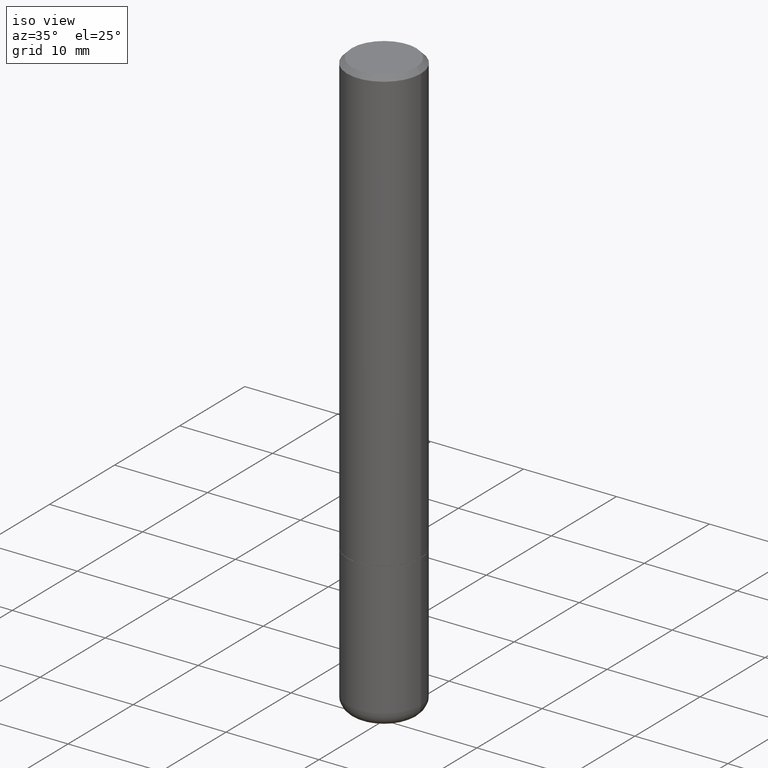
[diagram: clean part render]
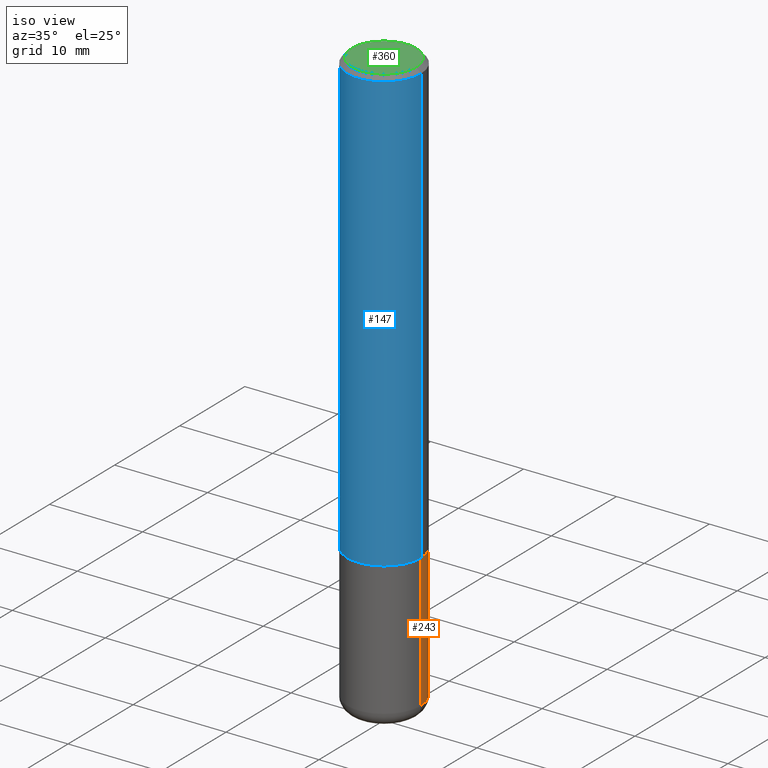
[diagram: same view with three faces highlighted in distinct colors, each labeled with its STEP entity id]
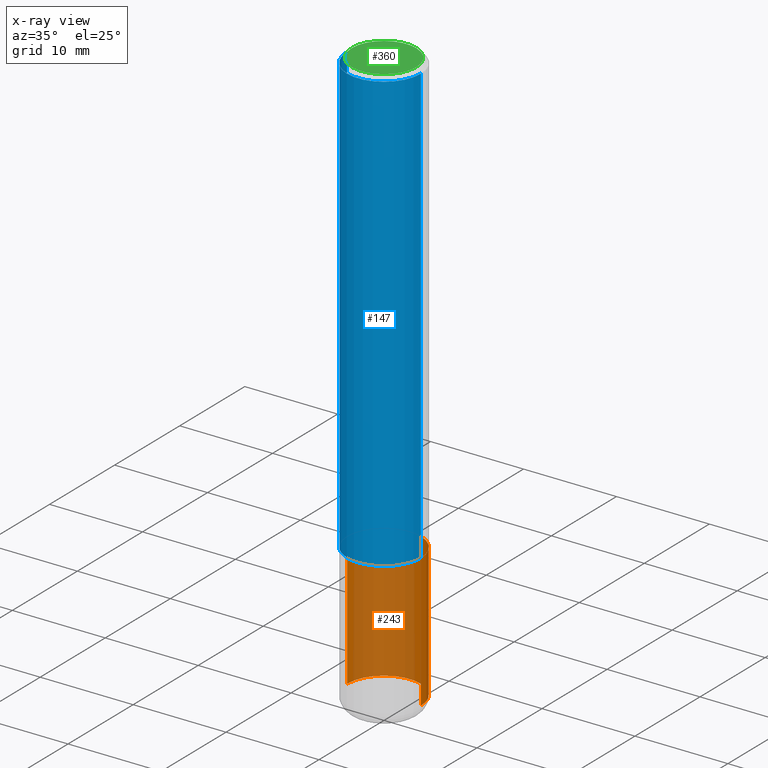
[diagram: x-ray of the same camera — body ghosted, the three highlighted faces saturated]
A machine part, iso view with three faces highlighted in distinct colors.
The next image is the same camera in x-ray (body ghosted, the three faces saturated) — at least one of them is partly hidden behind the body in this view.
Their STEP definitions:

[orange] entity #243 — the highlighted cylindrical surface (partial cylindrical patch) has radius 3.9688 mm, axis along (-0, 0, 1).
#15 = AXIS2_PLACEMENT_3D ( 'NONE', #309, #30, #129 ) ;
#28 = DIRECTION ( 'NONE',  ( -2.445468806185136877E-29, 3.491481338843145188E-15, 1.000000000000000000 ) ) ;
#30 = DIRECTION ( 'NONE',  ( -2.445468806185136597E-29, 3.491481338843145583E-15, 1.000000000000000000 ) ) ;
#60 = DIRECTION ( 'NONE',  ( 1.000000000000000000, -6.982962677686269077E-15, 0.000000000000000000 ) ) ;
#63 = DIRECTION ( 'NONE',  ( -2.445468806185136597E-29, 3.491481338843145583E-15, 1.000000000000000000 ) ) ;
#66 = VERTEX_POINT ( 'NONE', #270 ) ;
#76 = EDGE_CURVE ( 'NONE', #375, #368, #140, .T. ) ;
#79 = DIRECTION ( 'NONE',  ( 1.000000000000000000, -6.982962677686262766E-15, 0.000000000000000000 ) ) ;
#94 = DIRECTION ( 'NONE',  ( -2.445468806185136877E-29, 3.491481338843145188E-15, 1.000000000000000000 ) ) ;
#128 = CARTESIAN_POINT ( 'NONE',  ( -0.1562500000000001110, -7.408991442152118508E-15, -2.440000000000000391 ) ) ;
#129 = DIRECTION ( 'NONE',  ( 1.000000000000000000, -6.982962677686266711E-15, 4.876176775795936353E-29 ) ) ;
#133 = ORIENTED_EDGE ( 'NONE', *, *, #214, .F. ) ;
#140 = CIRCLE ( 'NONE', #331, 0.1562500000000000000 ) ;
#158 = LINE ( 'NONE', #301, #310 ) ;
#163 = CIRCLE ( 'NONE', #395, 0.1562500000000000000 ) ;
#171 = DIRECTION ( 'NONE',  ( -2.445468806185136597E-29, 3.491481338843145583E-15, 1.000000000000000000 ) ) ;
#175 = CARTESIAN_POINT ( 'NONE',  ( 5.966943887091733341E-29, -8.519214466777275048E-15, -2.440000000000000391 ) ) ;
#180 = CARTESIAN_POINT ( 'NONE',  ( 0.1562500000000001110, -9.610302385165753433E-15, -2.440000000000000391 ) ) ;
#187 = CYLINDRICAL_SURFACE ( 'NONE', #15, 0.1562500000000000000 ) ;
#209 = ORIENTED_EDGE ( 'NONE', *, *, #238, .F. ) ;
#214 = EDGE_CURVE ( 'NONE', #375, #348, #158, .T. ) ;
#217 = CARTESIAN_POINT ( 'NONE',  ( 4.585254011597131119E-29, -6.546527510330898707E-15, -1.875000000000000000 ) ) ;
#230 = EDGE_CURVE ( 'NONE', #368, #66, #241, .T. ) ;
#238 = EDGE_CURVE ( 'NONE', #348, #66, #163, .T. ) ;
#241 = LINE ( 'NONE', #369, #339 ) ;
#243 = ADVANCED_FACE ( 'NONE', ( #408 ), #187, .T. ) ;
#270 = CARTESIAN_POINT ( 'NONE',  ( -0.1562500000000000000, -6.422647963928930337E-15, -1.875000000000000000 ) ) ;
#276 = CARTESIAN_POINT ( 'NONE',  ( 0.1562500000000000000, -7.637615428719378669E-15, -1.875000000000000000 ) ) ;
#301 = CARTESIAN_POINT ( 'NONE',  ( 0.1562500000000000000, -1.091087918388479174E-15, 7.619026212181150377E-30 ) ) ;
#309 = CARTESIAN_POINT ( 'NONE',  ( 0.000000000000000000, 0.000000000000000000, 0.000000000000000000 ) ) ;
#310 = VECTOR ( 'NONE', #28, 39.37007874015748143 ) ;
#331 = AXIS2_PLACEMENT_3D ( 'NONE', #175, #171, #79 ) ;
#339 = VECTOR ( 'NONE', #94, 39.37007874015748143 ) ;
#348 = VERTEX_POINT ( 'NONE', #276 ) ;
#352 = EDGE_LOOP ( 'NONE', ( #412, #354, #209, #133 ) ) ;
#354 = ORIENTED_EDGE ( 'NONE', *, *, #230, .T. ) ;
#368 = VERTEX_POINT ( 'NONE', #128 ) ;
#369 = CARTESIAN_POINT ( 'NONE',  ( -0.1562500000000000000, 1.110223024625156540E-15, -7.685836078523291160E-30 ) ) ;
#375 = VERTEX_POINT ( 'NONE', #180 ) ;
#395 = AXIS2_PLACEMENT_3D ( 'NONE', #217, #63, #60 ) ;
#408 = FACE_OUTER_BOUND ( 'NONE', #352, .T. ) ;
#412 = ORIENTED_EDGE ( 'NONE', *, *, #76, .T. ) ;

[blue] entity #147 — the highlighted cylindrical surface (partial cylindrical patch) has radius 3.9688 mm, axis along (-0, 0, 1).
#6 = ORIENTED_EDGE ( 'NONE', *, *, #291, .T. ) ;
#21 = ORIENTED_EDGE ( 'NONE', *, *, #89, .F. ) ;
#22 = EDGE_CURVE ( 'NONE', #80, #240, #131, .T. ) ;
#29 = EDGE_CURVE ( 'NONE', #198, #37, #236, .T. ) ;
#32 = ORIENTED_EDGE ( 'NONE', *, *, #22, .F. ) ;
#37 = VERTEX_POINT ( 'NONE', #358 ) ;
#42 = DIRECTION ( 'NONE',  ( -2.445468806185136597E-29, 3.491481338843145583E-15, 1.000000000000000000 ) ) ;
#54 = CARTESIAN_POINT ( 'NONE',  ( 0.000000000000000000, 0.000000000000000000, 0.000000000000000000 ) ) ;
#57 = CARTESIAN_POINT ( 'NONE',  ( -0.1562500000000002220, -2.196209803259299803E-15, -1.874000000000000110 ) ) ;
#68 = CARTESIAN_POINT ( 'NONE',  ( 0.1562500000000001388, -1.091087918388480160E-15, 7.619026212181157383E-30 ) ) ;
#80 = VERTEX_POINT ( 'NONE', #397 ) ;
#89 = EDGE_CURVE ( 'NONE', #198, #80, #115, .T. ) ;
#115 = LINE ( 'NONE', #145, #225 ) ;
#131 = CIRCLE ( 'NONE', #379, 0.1562500000000000278 ) ;
#145 = CARTESIAN_POINT ( 'NONE',  ( -0.1562500000000001388, 1.110223024625157526E-15, -7.685836078523296765E-30 ) ) ;
#147 = ADVANCED_FACE ( 'NONE', ( #363 ), #335, .T. ) ;
#149 = DIRECTION ( 'NONE',  ( -2.445468806185136597E-29, 3.491481338843145583E-15, 1.000000000000000000 ) ) ;
#160 = DIRECTION ( 'NONE',  ( 1.000000000000000000, -6.982962677686266711E-15, 4.876176775795936353E-29 ) ) ;
#166 = LINE ( 'NONE', #68, #374 ) ;
#185 = CARTESIAN_POINT ( 'NONE',  ( 0.1562500000000000278, -1.141782438928665105E-15, -0.02000000000000003511 ) ) ;
#197 = AXIS2_PLACEMENT_3D ( 'NONE', #266, #149, #211 ) ;
#198 = VERTEX_POINT ( 'NONE', #57 ) ;
#211 = DIRECTION ( 'NONE',  ( 1.000000000000000000, -6.982962677686265922E-15, 0.000000000000000000 ) ) ;
#220 = DIRECTION ( 'NONE',  ( -2.445468806185136597E-29, 3.491481338843145583E-15, 1.000000000000000000 ) ) ;
#225 = VECTOR ( 'NONE', #400, 39.37007874015748143 ) ;
#236 = CIRCLE ( 'NONE', #197, 0.1562500000000002220 ) ;
#240 = VERTEX_POINT ( 'NONE', #185 ) ;
#251 = DIRECTION ( 'NONE',  ( -2.445468806185136877E-29, 3.491481338843145188E-15, 1.000000000000000000 ) ) ;
#265 = AXIS2_PLACEMENT_3D ( 'NONE', #54, #220, #160 ) ;
#266 = CARTESIAN_POINT ( 'NONE',  ( 4.582808542790945516E-29, -6.543036028992054911E-15, -1.874000000000000110 ) ) ;
#291 = EDGE_CURVE ( 'NONE', #37, #240, #166, .T. ) ;
#293 = DIRECTION ( 'NONE',  ( 1.000000000000000000, -6.982962677686266711E-15, 0.000000000000000000 ) ) ;
#320 = CARTESIAN_POINT ( 'NONE',  ( 4.890937612370281041E-31, -6.982962677686302702E-17, -0.02000000000000003511 ) ) ;
#335 = CYLINDRICAL_SURFACE ( 'NONE', #265, 0.1562500000000001388 ) ;
#358 = CARTESIAN_POINT ( 'NONE',  ( 0.1562500000000002220, -7.634123947380535662E-15, -1.874000000000000110 ) ) ;
#363 = FACE_OUTER_BOUND ( 'NONE', #376, .T. ) ;
#374 = VECTOR ( 'NONE', #251, 39.37007874015748143 ) ;
#376 = EDGE_LOOP ( 'NONE', ( #21, #398, #6, #32 ) ) ;
#379 = AXIS2_PLACEMENT_3D ( 'NONE', #320, #42, #293 ) ;
#397 = CARTESIAN_POINT ( 'NONE',  ( -0.1562500000000000278, 1.021258291611616467E-15, -0.02000000000000003511 ) ) ;
#398 = ORIENTED_EDGE ( 'NONE', *, *, #29, .T. ) ;
#400 = DIRECTION ( 'NONE',  ( -2.445468806185136877E-29, 3.491481338843145188E-15, 1.000000000000000000 ) ) ;

[green] entity #360 — the highlighted planar face has unit normal (0, -0, -1).
#31 = CIRCLE ( 'NONE', #344, 0.1362500000000000377 ) ;
#64 = CARTESIAN_POINT ( 'NONE',  ( 0.000000000000000000, 0.000000000000000000, 0.000000000000000000 ) ) ;
#75 = VERTEX_POINT ( 'NONE', #296 ) ;
#78 = ORIENTED_EDGE ( 'NONE', *, *, #170, .T. ) ;
#86 = ORIENTED_EDGE ( 'NONE', *, *, #164, .T. ) ;
#90 = DIRECTION ( 'NONE',  ( -1.000000000000000000, 6.982962677686265922E-15, -4.876176775795935793E-29 ) ) ;
#91 = CARTESIAN_POINT ( 'NONE',  ( 9.514286648347541549E-16, 0.1362500000000000377, -4.757143324173787538E-16 ) ) ;
#99 = DIRECTION ( 'NONE',  ( 2.438088387897960049E-29, -3.491481338843145188E-15, -1.000000000000000000 ) ) ;
#106 = VERTEX_POINT ( 'NONE', #229 ) ;
#121 = CIRCLE ( 'NONE', #259, 0.1362500000000000377 ) ;
#156 = DIRECTION ( 'NONE',  ( 1.000000000000000000, -6.982962677686266711E-15, 4.876176775795936353E-29 ) ) ;
#164 = EDGE_CURVE ( 'NONE', #75, #106, #121, .T. ) ;
#170 = EDGE_CURVE ( 'NONE', #106, #75, #31, .T. ) ;
#229 = CARTESIAN_POINT ( 'NONE',  ( -0.1362500000000000377, 9.863434782231852123E-16, -6.775751096333141285E-30 ) ) ;
#239 = DIRECTION ( 'NONE',  ( 1.000000000000000000, -6.982962677686266711E-15, 4.876176775795936353E-29 ) ) ;
#246 = AXIS2_PLACEMENT_3D ( 'NONE', #91, #99, #90 ) ;
#253 = EDGE_LOOP ( 'NONE', ( #78, #86 ) ) ;
#259 = AXIS2_PLACEMENT_3D ( 'NONE', #64, #341, #239 ) ;
#279 = DIRECTION ( 'NONE',  ( -2.445468806185136597E-29, 3.491481338843145583E-15, 1.000000000000000000 ) ) ;
#296 = CARTESIAN_POINT ( 'NONE',  ( 0.1362500000000000377, -1.038262645562518322E-15, 6.957025900226697878E-30 ) ) ;
#308 = CARTESIAN_POINT ( 'NONE',  ( 0.000000000000000000, 0.000000000000000000, 0.000000000000000000 ) ) ;
#341 = DIRECTION ( 'NONE',  ( -2.445468806185136597E-29, 3.491481338843145583E-15, 1.000000000000000000 ) ) ;
#344 = AXIS2_PLACEMENT_3D ( 'NONE', #308, #279, #156 ) ;
#360 = ADVANCED_FACE ( 'NONE', ( #371 ), #364, .F. ) ;
#364 = PLANE ( 'NONE',  #246 ) ;
#371 = FACE_OUTER_BOUND ( 'NONE', #253, .T. ) ;